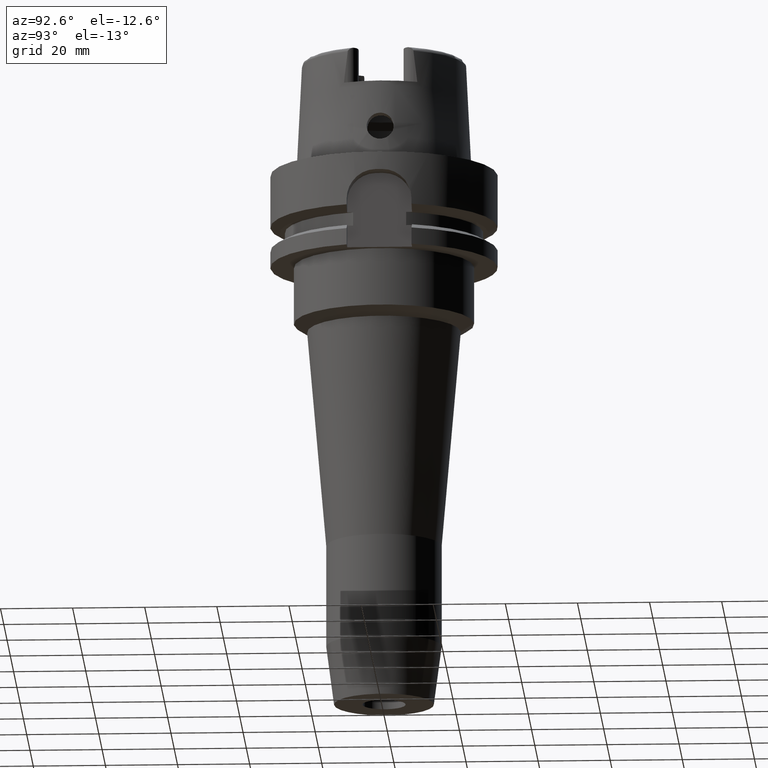
[diagram: clean part render]
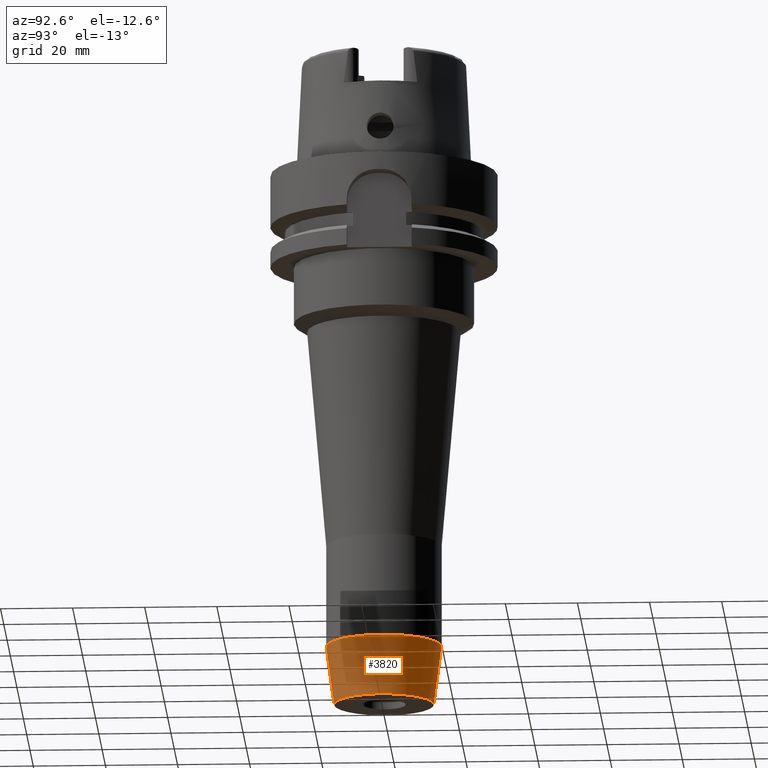
[diagram: same view with one face highlighted and labeled with its STEP entity id]
A machine part, auxiliary view. The second image highlights one B-rep face of the part: STEP entity #3820.
In plain terms, the highlighted conical surface has half-angle 7.5 deg.
Its self-contained STEP definition (entity closure, byte-faithful):
#1721=DIRECTION('',(0.E0,1.305261922199E-1,-9.914448613738E-1));
#1722=VECTOR('',#1721,1.650626562654E1);
#1723=CARTESIAN_POINT('',(0.E0,-1.6E1,-1.336349477641E2));
#1724=LINE('',#1723,#1722);
#1728=DIRECTION('',(0.E0,-1.305261922199E-1,-9.914448613738E-1));
#1729=VECTOR('',#1728,1.650626562654E1);
#1730=CARTESIAN_POINT('',(0.E0,1.6E1,-1.336349477641E2));
#1731=LINE('',#1730,#1729);
#1735=CARTESIAN_POINT('',(0.E0,0.E0,-1.336349477641E2));
#1736=DIRECTION('',(0.E0,0.E0,1.E0));
#1737=DIRECTION('',(0.E0,-1.E0,0.E0));
#1738=AXIS2_PLACEMENT_3D('',#1735,#1736,#1737);
#1743=CARTESIAN_POINT('',(0.E0,0.E0,-1.5E2));
#1744=DIRECTION('',(0.E0,0.E0,1.E0));
#1745=DIRECTION('',(0.E0,-1.E0,0.E0));
#1746=AXIS2_PLACEMENT_3D('',#1743,#1744,#1745);
#2460=CARTESIAN_POINT('',(0.E0,-1.38455E1,-1.5E2));
#2461=CARTESIAN_POINT('',(0.E0,1.38455E1,-1.5E2));
#2462=VERTEX_POINT('',#2460);
#2463=VERTEX_POINT('',#2461);
#2464=CARTESIAN_POINT('',(0.E0,1.6E1,-1.336349477641E2));
#2465=VERTEX_POINT('',#2464);
#2466=CARTESIAN_POINT('',(0.E0,-1.6E1,-1.336349477641E2));
#2467=VERTEX_POINT('',#2466);
#3808=CARTESIAN_POINT('',(0.E0,0.E0,-1.418174738821E2));
#3809=DIRECTION('',(0.E0,0.E0,1.E0));
#3810=DIRECTION('',(0.E0,1.E0,0.E0));
#3811=AXIS2_PLACEMENT_3D('',#3808,#3809,#3810);
#3812=CONICAL_SURFACE('',#3811,1.492275000001E1,7.5E0);
#3813=ORIENTED_EDGE('',*,*,#3798,.T.);
#3815=ORIENTED_EDGE('',*,*,#3814,.F.);
#3816=ORIENTED_EDGE('',*,*,#3801,.F.);
#3817=ORIENTED_EDGE('',*,*,#3772,.T.);
#3818=EDGE_LOOP('',(#3813,#3815,#3816,#3817));
#3819=FACE_OUTER_BOUND('',#3818,.F.);
#1739=CIRCLE('',#1738,1.600000000001E1);
#1747=CIRCLE('',#1746,1.38455E1);
#3772=EDGE_CURVE('',#2467,#2465,#1739,.T.);
#3798=EDGE_CURVE('',#2465,#2463,#1731,.T.);
#3801=EDGE_CURVE('',#2467,#2462,#1724,.T.);
#3814=EDGE_CURVE('',#2462,#2463,#1747,.T.);
#3820=ADVANCED_FACE('',(#3819),#3812,.T.);